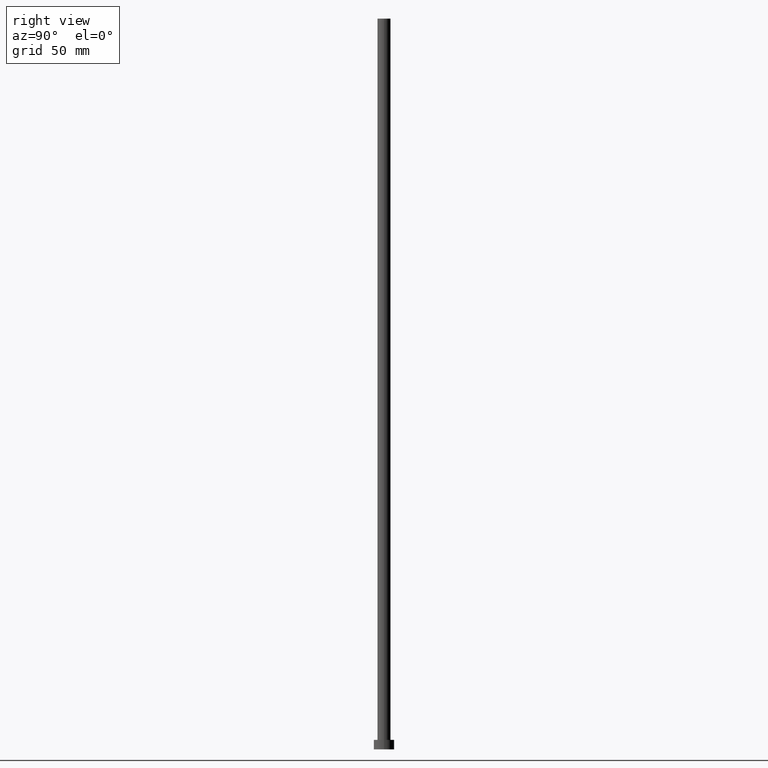
[diagram: clean part render]
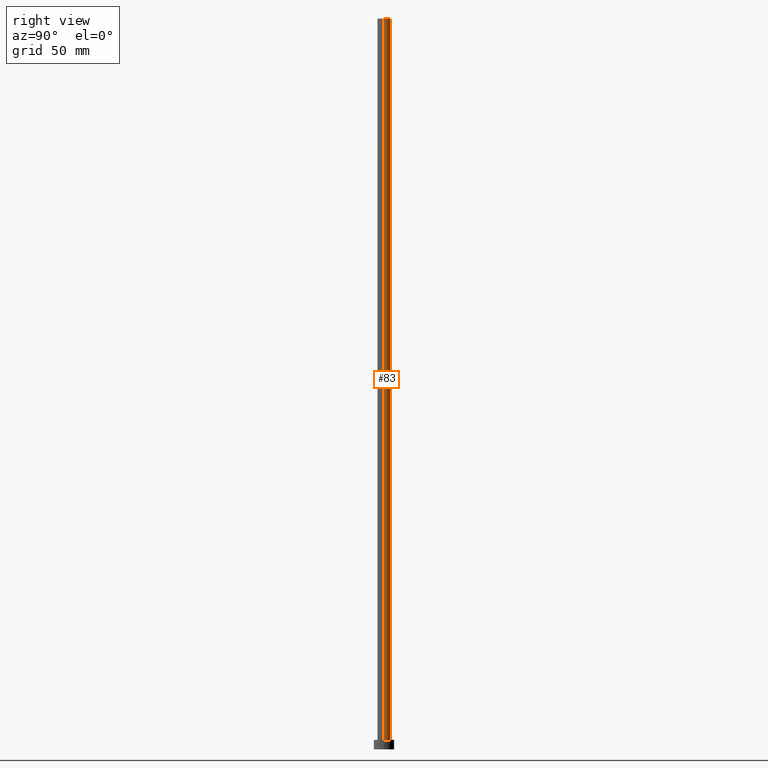
[diagram: same view with one face highlighted and labeled with its STEP entity id]
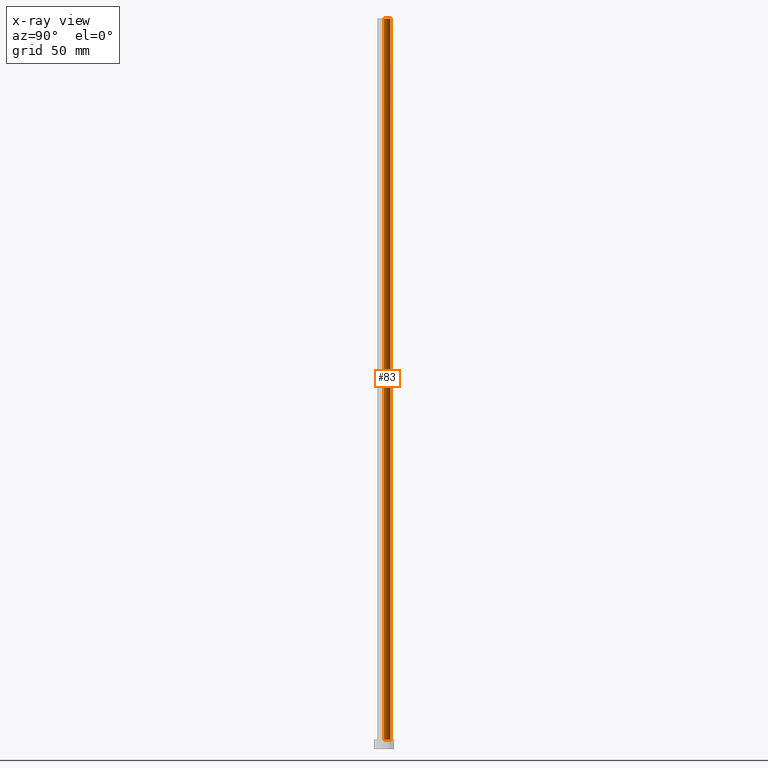
[diagram: x-ray of the same camera — body ghosted, the highlighted face saturated]
A machine part, right view. The second image highlights one B-rep face of the part: STEP entity #83.
The next image is the same camera in x-ray: the body ghosted, the highlighted face saturated — about 0% of this face is hidden behind the body in this view.
In plain terms, the highlighted cylindrical surface (edge-blend (fillet) strip) has radius 4.5 mm, axis along (-0, -0, -1).
Its self-contained STEP definition (entity closure, byte-faithful):
#3 = CARTESIAN_POINT ( 'NONE',  ( 4.500000000000000888, 5.510910596163089556E-16, 500.0000000000000000 ) ) ;
#6 = ORIENTED_EDGE ( 'NONE', *, *, #245, .T. ) ;
#15 = DIRECTION ( 'NONE',  ( -0.000000000000000000, -0.000000000000000000, -1.000000000000000000 ) ) ;
#16 = DIRECTION ( 'NONE',  ( -0.000000000000000000, -0.000000000000000000, -1.000000000000000000 ) ) ;
#20 = DIRECTION ( 'NONE',  ( 1.000000000000000000, 0.000000000000000000, 0.000000000000000000 ) ) ;
#33 = CARTESIAN_POINT ( 'NONE',  ( 0.000000000000000000, 0.000000000000000000, 6.500000000000000000 ) ) ;
#37 = AXIS2_PLACEMENT_3D ( 'NONE', #33, #209, #252 ) ;
#45 = CARTESIAN_POINT ( 'NONE',  ( -4.500000000000000888, 0.000000000000000000, 500.0000000000000000 ) ) ;
#48 = LINE ( 'NONE', #189, #211 ) ;
#52 = DIRECTION ( 'NONE',  ( -1.000000000000000000, 0.000000000000000000, 0.000000000000000000 ) ) ;
#57 = AXIS2_PLACEMENT_3D ( 'NONE', #168, #167, #52 ) ;
#66 = CARTESIAN_POINT ( 'NONE',  ( -4.500000000000000888, 0.000000000000000000, 6.500000000000000000 ) ) ;
#67 = CYLINDRICAL_SURFACE ( 'NONE', #57, 4.500000000000000888 ) ;
#80 = CIRCLE ( 'NONE', #37, 4.500000000000000888 ) ;
#83 = ADVANCED_FACE ( 'NONE', ( #138 ), #67, .T. ) ;
#91 = EDGE_CURVE ( 'NONE', #98, #157, #182, .T. ) ;
#98 = VERTEX_POINT ( 'NONE', #3 ) ;
#124 = ORIENTED_EDGE ( 'NONE', *, *, #91, .F. ) ;
#132 = AXIS2_PLACEMENT_3D ( 'NONE', #232, #142, #20 ) ;
#134 = CARTESIAN_POINT ( 'NONE',  ( -4.500000000000000888, 0.000000000000000000, 500.0000000000000000 ) ) ;
#138 = FACE_OUTER_BOUND ( 'NONE', #214, .T. ) ;
#142 = DIRECTION ( 'NONE',  ( 0.000000000000000000, 0.000000000000000000, 1.000000000000000000 ) ) ;
#152 = CARTESIAN_POINT ( 'NONE',  ( 4.500000000000000888, 5.510910596163089556E-16, 6.500000000000000000 ) ) ;
#153 = VERTEX_POINT ( 'NONE', #66 ) ;
#157 = VERTEX_POINT ( 'NONE', #45 ) ;
#167 = DIRECTION ( 'NONE',  ( -0.000000000000000000, -0.000000000000000000, -1.000000000000000000 ) ) ;
#168 = CARTESIAN_POINT ( 'NONE',  ( 0.000000000000000000, 0.000000000000000000, 500.0000000000000000 ) ) ;
#177 = ORIENTED_EDGE ( 'NONE', *, *, #180, .F. ) ;
#180 = EDGE_CURVE ( 'NONE', #157, #153, #208, .T. ) ;
#182 = CIRCLE ( 'NONE', #132, 4.500000000000000888 ) ;
#188 = EDGE_CURVE ( 'NONE', #217, #153, #80, .T. ) ;
#189 = CARTESIAN_POINT ( 'NONE',  ( 4.500000000000000888, 5.510910596163089556E-16, 500.0000000000000000 ) ) ;
#192 = VECTOR ( 'NONE', #16, 1000.000000000000000 ) ;
#208 = LINE ( 'NONE', #134, #192 ) ;
#209 = DIRECTION ( 'NONE',  ( 0.000000000000000000, 0.000000000000000000, 1.000000000000000000 ) ) ;
#211 = VECTOR ( 'NONE', #15, 1000.000000000000000 ) ;
#214 = EDGE_LOOP ( 'NONE', ( #124, #6, #237, #177 ) ) ;
#217 = VERTEX_POINT ( 'NONE', #152 ) ;
#232 = CARTESIAN_POINT ( 'NONE',  ( 0.000000000000000000, 0.000000000000000000, 500.0000000000000000 ) ) ;
#237 = ORIENTED_EDGE ( 'NONE', *, *, #188, .T. ) ;
#245 = EDGE_CURVE ( 'NONE', #98, #217, #48, .T. ) ;
#252 = DIRECTION ( 'NONE',  ( 1.000000000000000000, 0.000000000000000000, 0.000000000000000000 ) ) ;